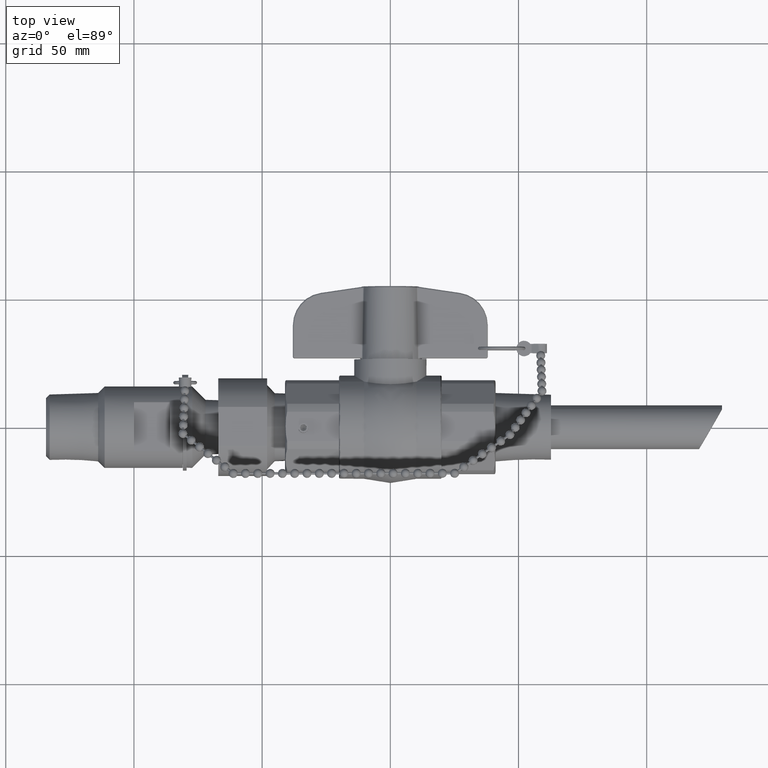
[diagram: clean part render]
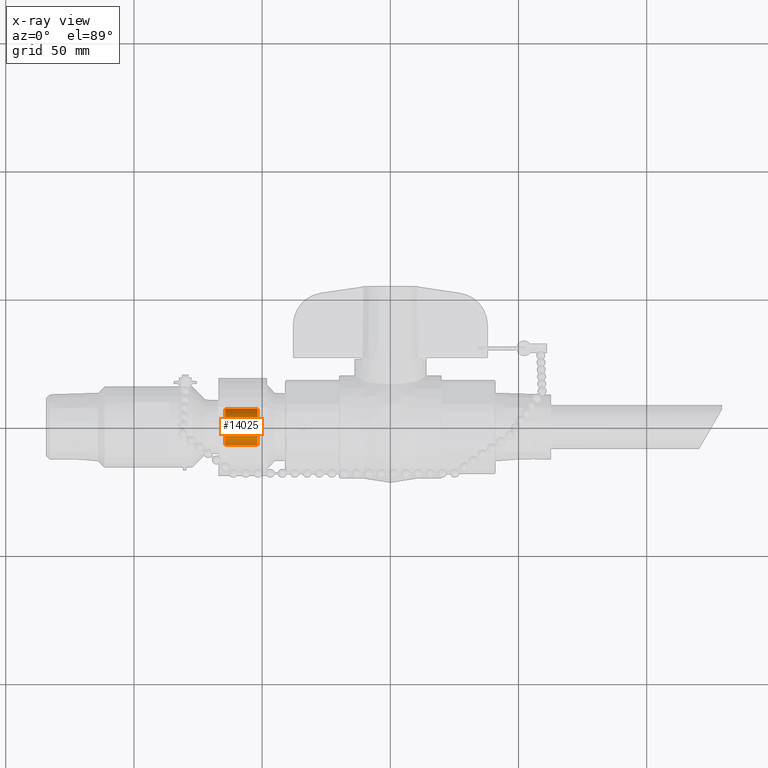
[diagram: x-ray — body ghosted, one internal face saturated and labeled with its STEP entity id]
A machine part, top view, then the same camera in x-ray: the body is ghosted and one INTERNAL B-rep face — a face not visible from any outside direction — is saturated and labeled: STEP entity #14025.
In plain terms, the highlighted cylindrical surface (bore or boss wall) has radius 7.112 mm, axis along (1, -0, 0).
Its self-contained STEP definition (entity closure, byte-faithful):
#13963=CARTESIAN_POINT('',(-2.037000000000000,0.280000000000002,-5.430427E-016));
#13964=VERTEX_POINT('',#13963);
#13965=CARTESIAN_POINT('',(-2.037000000000000,2.492252E-016,-5.430427E-016));
#13966=DIRECTION('',(1.0,0.0,0.0));
#13967=DIRECTION('',(0.0,1.0,0.0));
#13968=AXIS2_PLACEMENT_3D('',#13965,#13966,#13967);
#13969=CIRCLE('',#13968,0.280000000000002);
#13970=EDGE_CURVE('',#13964,#13964,#13969,.T.);
#14006=CARTESIAN_POINT('',(-2.287000000000000,2.492252E-016,-5.788380E-016));
#14007=DIRECTION('',(1.0,-4.312304E-031,1.431812E-016));
#14008=DIRECTION('',(0.0,1.0,0.0));
#14009=AXIS2_PLACEMENT_3D('',#14006,#14007,#14008);
#14010=CYLINDRICAL_SURFACE('',#14009,0.280000000000002);
#14011=CARTESIAN_POINT('',(-2.537000000000000,0.280000000000002,-6.146333E-016));
#14012=VERTEX_POINT('',#14011);
#14013=CARTESIAN_POINT('',(-2.537000000000000,2.492252E-016,-6.146333E-016));
#14014=DIRECTION('',(1.0,0.0,0.0));
#14015=DIRECTION('',(0.0,1.0,0.0));
#14016=AXIS2_PLACEMENT_3D('',#14013,#14014,#14015);
#14017=CIRCLE('',#14016,0.280000000000001);
#14018=EDGE_CURVE('',#14012,#14012,#14017,.T.);
#14019=ORIENTED_EDGE('',*,*,#14018,.F.);
#14020=EDGE_LOOP('',(#14019));
#14021=FACE_OUTER_BOUND('',#14020,.T.);
#14022=ORIENTED_EDGE('',*,*,#13970,.T.);
#14023=EDGE_LOOP('',(#14022));
#14024=FACE_BOUND('',#14023,.T.);
#14025=ADVANCED_FACE('',(#14021,#14024),#14010,.F.);